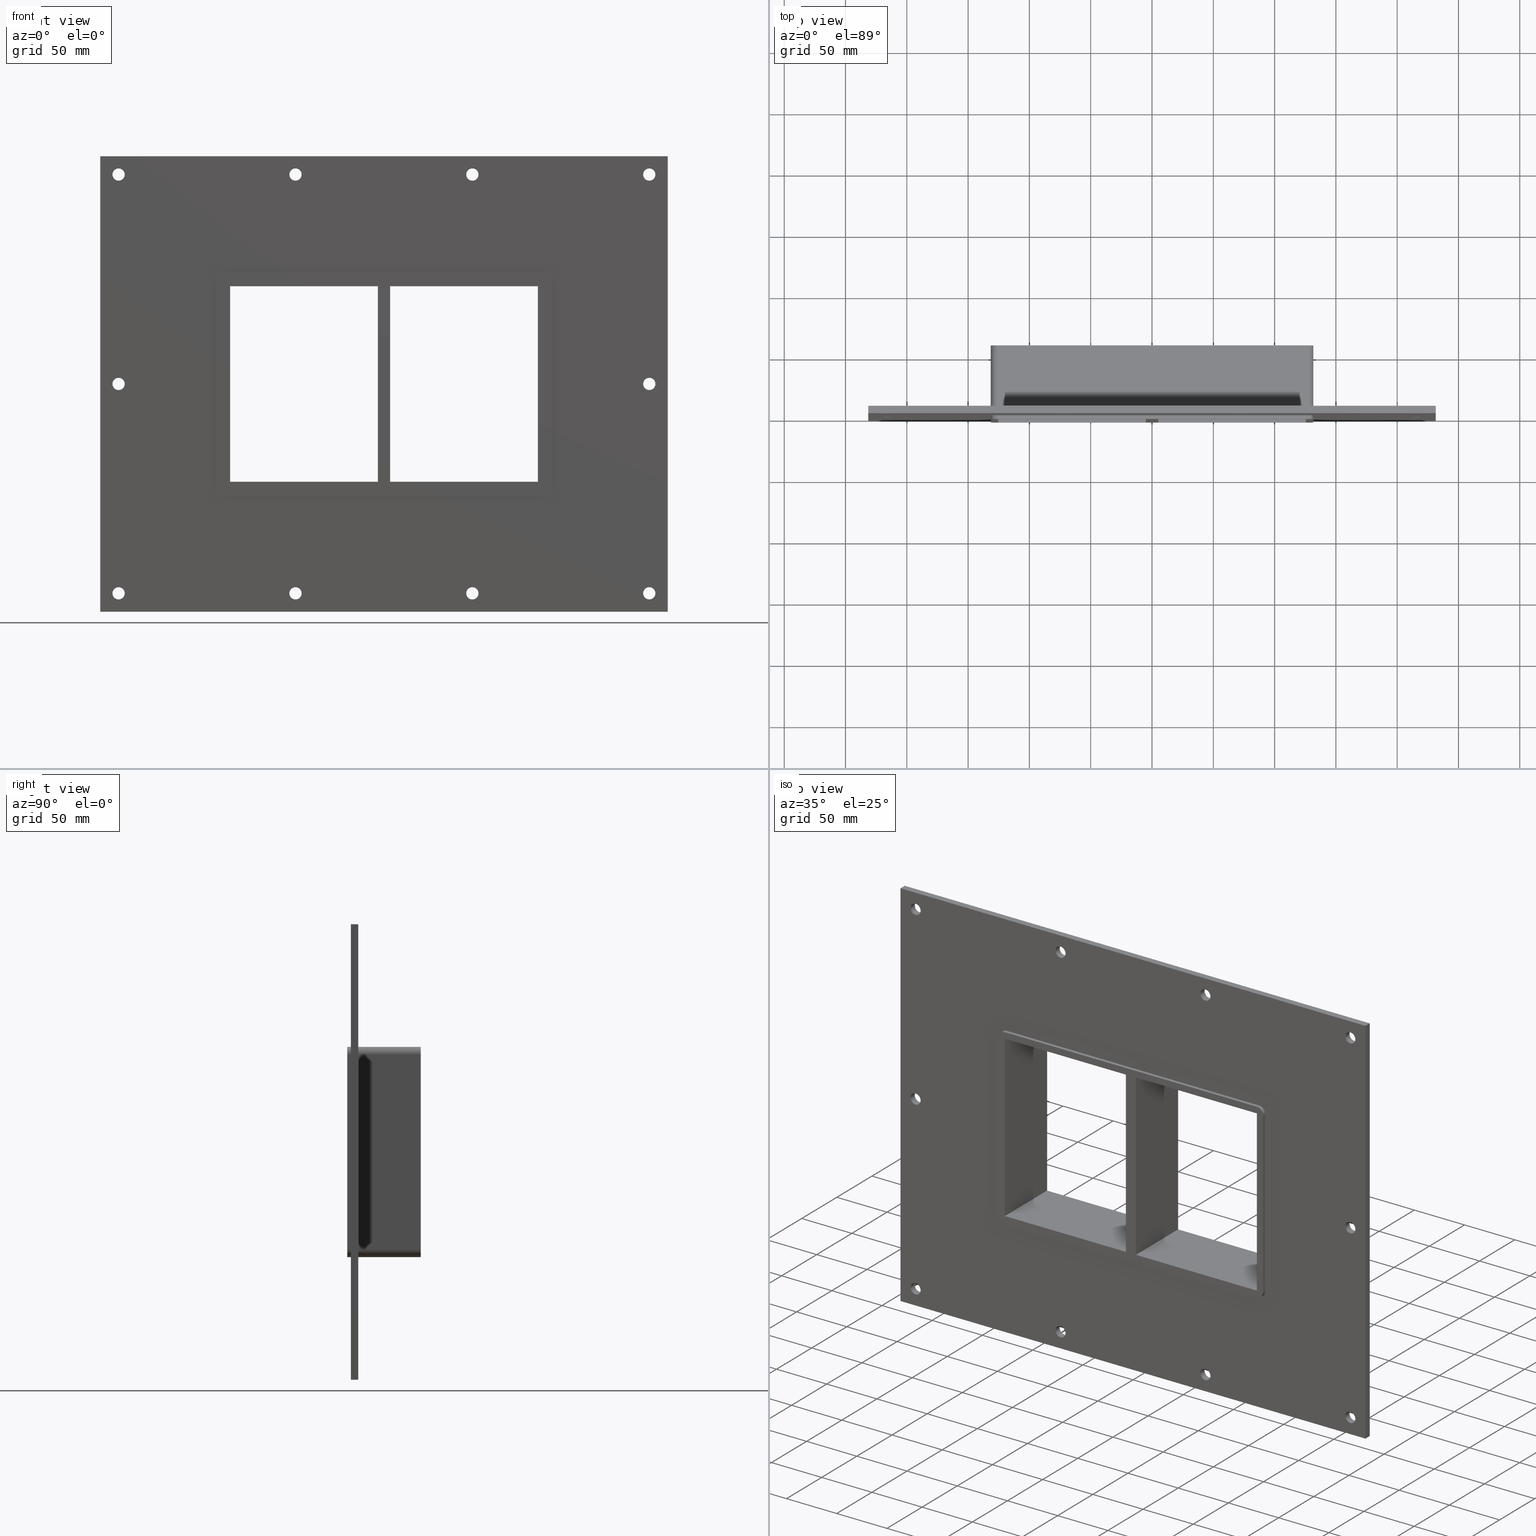
[diagram: canonical four-view strip — front | top / right | iso, engineering-drawing reading convention]
A machine part, canonical four-view strip (front | top / right | iso — engineering-drawing reading convention). The complete STEP part file that produces these views, byte-faithful:
ISO-10303-21;
HEADER;
/****************************************************************
 * Generated by software with PDElib inside                    *
 * PDElib Version v51a, created Wed 11/30/2011                  *
 * ITI Transcendata (http://www.transcendata.com/)              *
 ****************************************************************/
FILE_DESCRIPTION((''),'2;1');
FILE_NAME('C:\\Users\\se-milkar\\Desktop\\RTD Generator\\CreatedFiles\\STEP\\GHFL1004X2.stp','2014-03-10T22:15:23',(''),(''),'Autodesk Inventor 2013','Autodesk Inventor 2013','');
FILE_SCHEMA(('AUTOMOTIVE_DESIGN { 1 0 10303 214 1 1 1 1 }'));
ENDSEC;
DATA;
#5=APPLICATION_CONTEXT('automotive design');
#6=APPLICATION_PROTOCOL_DEFINITION('International Standard','automotive_design',2001,#5);
#7=PRODUCT_CONTEXT('',#5,'mechanical');
#8=PRODUCT('GH FL100','GH FL100',$,(#7));
#9=PRODUCT_RELATED_PRODUCT_CATEGORY('part',$,(#8));
#10=PRODUCT_DEFINITION_FORMATION('',$,#8);
#11=PRODUCT_DEFINITION_CONTEXT('part definition',#5,'design');
#12=PRODUCT_DEFINITION('',$,#10,#11);
#18=(NAMED_UNIT(*)PLANE_ANGLE_UNIT()SI_UNIT($,.RADIAN.));
#19=DIMENSIONAL_EXPONENTS(0.0,0.0,0.0,0.0,0.0,0.0,0.0);
#20=PLANE_ANGLE_MEASURE_WITH_UNIT(PLANE_ANGLE_MEASURE(0.0174532925),#18);
#24=(CONVERSION_BASED_UNIT('DEGREE',#20)NAMED_UNIT(#19)PLANE_ANGLE_UNIT());
#28=(NAMED_UNIT(*)SI_UNIT($,.STERADIAN.)SOLID_ANGLE_UNIT());
#32=(LENGTH_UNIT()NAMED_UNIT(*)SI_UNIT(.MILLI.,.METRE.));
#34=UNCERTAINTY_MEASURE_WITH_UNIT(LENGTH_MEASURE(0.01),#32,'DISTANCE_ACCURACY_VALUE','');
#36=(GEOMETRIC_REPRESENTATION_CONTEXT(3)GLOBAL_UNCERTAINTY_ASSIGNED_CONTEXT((#34))GLOBAL_UNIT_ASSIGNED_CONTEXT((#24,#28,#32))REPRESENTATION_CONTEXT('None','None'));
#37=AXIS2_PLACEMENT_3D('',#38,#39,#40);
#38=CARTESIAN_POINT('',(0.0,0.0,0.0));
#39=DIRECTION('',(0.0,0.0,1.0));
#40=DIRECTION('',(1.0,0.0,0.0));
#41=SHAPE_REPRESENTATION('',(#37),#36);
#42=PRODUCT_DEFINITION_SHAPE('','',#12);
#43=SHAPE_DEFINITION_REPRESENTATION(#42,#41);
#49=(NAMED_UNIT(*)PLANE_ANGLE_UNIT()SI_UNIT($,.RADIAN.));
#50=DIMENSIONAL_EXPONENTS(0.0,0.0,0.0,0.0,0.0,0.0,0.0);
#51=PLANE_ANGLE_MEASURE_WITH_UNIT(PLANE_ANGLE_MEASURE(0.0174532925),#49);
#55=(CONVERSION_BASED_UNIT('DEGREE',#51)NAMED_UNIT(#50)PLANE_ANGLE_UNIT());
#59=(NAMED_UNIT(*)SI_UNIT($,.STERADIAN.)SOLID_ANGLE_UNIT());
#63=(LENGTH_UNIT()NAMED_UNIT(*)SI_UNIT(.MILLI.,.METRE.));
#65=UNCERTAINTY_MEASURE_WITH_UNIT(LENGTH_MEASURE(0.000001),#63,'DISTANCE_ACCURACY_VALUE','');
#67=(GEOMETRIC_REPRESENTATION_CONTEXT(3)GLOBAL_UNCERTAINTY_ASSIGNED_CONTEXT((#65))GLOBAL_UNIT_ASSIGNED_CONTEXT((#55,#59,#63))REPRESENTATION_CONTEXT('','3D'));
#68=CARTESIAN_POINT('',(-216.50000000000011,596.6416428644585,-170.75));
#69=DIRECTION('',(0.0,-1.0,0.0));
#70=DIRECTION('',(1.0,0.0,0.0));
#71=AXIS2_PLACEMENT_3D('',#68,#69,#70);
#72=CYLINDRICAL_SURFACE('',#71,5.0);
#73=CARTESIAN_POINT('',(-221.50000000000011,6.000000000000014,-170.75));
#74=VERTEX_POINT('',#73);
#75=CARTESIAN_POINT('',(-216.50000000000011,6.000000000000014,-170.75));
#76=DIRECTION('',(0.0,-1.0,0.0));
#77=DIRECTION('',(1.0,0.0,0.0));
#78=AXIS2_PLACEMENT_3D('',#75,#76,#77);
#79=CIRCLE('',#78,5.0);
#80=EDGE_CURVE('',#74,#74,#79,.T.);
#81=ORIENTED_EDGE('',*,*,#80,.F.);
#82=EDGE_LOOP('',(#81));
#83=FACE_OUTER_BOUND('',#82,.T.);
#84=CARTESIAN_POINT('',(-211.50000000000011,0.0,-170.75));
#85=VERTEX_POINT('',#84);
#86=CARTESIAN_POINT('',(-216.50000000000011,0.0,-170.75));
#87=DIRECTION('',(0.0,1.0,0.0));
#88=DIRECTION('',(1.0,0.0,0.0));
#89=AXIS2_PLACEMENT_3D('',#86,#87,#88);
#90=CIRCLE('',#89,5.0);
#91=EDGE_CURVE('',#85,#85,#90,.T.);
#92=ORIENTED_EDGE('',*,*,#91,.F.);
#93=EDGE_LOOP('',(#92));
#94=FACE_BOUND('',#93,.T.);
#95=ADVANCED_FACE('',(#83,#94),#72,.F.);
#96=CARTESIAN_POINT('',(216.39999999999992,596.6416428644585,0.050000000000026));
#97=DIRECTION('',(0.0,-1.0,0.0));
#98=DIRECTION('',(1.0,0.0,0.0));
#99=AXIS2_PLACEMENT_3D('',#96,#97,#98);
#100=CYLINDRICAL_SURFACE('',#99,5.0);
#101=CARTESIAN_POINT('',(211.39999999999992,6.000000000000014,0.050000000000026));
#102=VERTEX_POINT('',#101);
#103=CARTESIAN_POINT('',(216.39999999999992,6.000000000000014,0.050000000000026));
#104=DIRECTION('',(0.0,-1.0,0.0));
#105=DIRECTION('',(1.0,0.0,0.0));
#106=AXIS2_PLACEMENT_3D('',#103,#104,#105);
#107=CIRCLE('',#106,5.0);
#108=EDGE_CURVE('',#102,#102,#107,.T.);
#109=ORIENTED_EDGE('',*,*,#108,.F.);
#110=EDGE_LOOP('',(#109));
#111=FACE_OUTER_BOUND('',#110,.T.);
#112=CARTESIAN_POINT('',(221.39999999999992,0.0,0.050000000000026));
#113=VERTEX_POINT('',#112);
#114=CARTESIAN_POINT('',(216.39999999999992,0.0,0.050000000000026));
#115=DIRECTION('',(0.0,1.0,0.0));
#116=DIRECTION('',(1.0,0.0,0.0));
#117=AXIS2_PLACEMENT_3D('',#114,#115,#116);
#118=CIRCLE('',#117,5.0);
#119=EDGE_CURVE('',#113,#113,#118,.T.);
#120=ORIENTED_EDGE('',*,*,#119,.F.);
#121=EDGE_LOOP('',(#120));
#122=FACE_BOUND('',#121,.T.);
#123=ADVANCED_FACE('',(#111,#122),#100,.F.);
#124=CARTESIAN_POINT('',(-216.50000000000011,596.6416428644585,0.050000000000026));
#125=DIRECTION('',(0.0,-1.0,0.0));
#126=DIRECTION('',(1.0,0.0,0.0));
#127=AXIS2_PLACEMENT_3D('',#124,#125,#126);
#128=CYLINDRICAL_SURFACE('',#127,5.0);
#129=CARTESIAN_POINT('',(-221.50000000000011,6.000000000000014,0.050000000000026));
#130=VERTEX_POINT('',#129);
#131=CARTESIAN_POINT('',(-216.50000000000011,6.000000000000014,0.050000000000026));
#132=DIRECTION('',(0.0,-1.0,0.0));
#133=DIRECTION('',(1.0,0.0,0.0));
#134=AXIS2_PLACEMENT_3D('',#131,#132,#133);
#135=CIRCLE('',#134,5.0);
#136=EDGE_CURVE('',#130,#130,#135,.T.);
#137=ORIENTED_EDGE('',*,*,#136,.F.);
#138=EDGE_LOOP('',(#137));
#139=FACE_OUTER_BOUND('',#138,.T.);
#140=CARTESIAN_POINT('',(-211.50000000000011,0.0,0.050000000000026));
#141=VERTEX_POINT('',#140);
#142=CARTESIAN_POINT('',(-216.50000000000011,0.0,0.050000000000026));
#143=DIRECTION('',(0.0,1.0,0.0));
#144=DIRECTION('',(1.0,0.0,0.0));
#145=AXIS2_PLACEMENT_3D('',#142,#143,#144);
#146=CIRCLE('',#145,5.0);
#147=EDGE_CURVE('',#141,#141,#146,.T.);
#148=ORIENTED_EDGE('',*,*,#147,.F.);
#149=EDGE_LOOP('',(#148));
#150=FACE_BOUND('',#149,.T.);
#151=ADVANCED_FACE('',(#139,#150),#128,.F.);
#152=CARTESIAN_POINT('',(-72.200000000000102,596.6416428644585,170.85000000000005));
#153=DIRECTION('',(0.0,-1.0,0.0));
#154=DIRECTION('',(1.0,0.0,0.0));
#155=AXIS2_PLACEMENT_3D('',#152,#153,#154);
#156=CYLINDRICAL_SURFACE('',#155,5.0);
#157=CARTESIAN_POINT('',(-77.200000000000102,6.000000000000014,170.85000000000005));
#158=VERTEX_POINT('',#157);
#159=CARTESIAN_POINT('',(-72.200000000000102,6.000000000000014,170.85000000000005));
#160=DIRECTION('',(0.0,-1.0,0.0));
#161=DIRECTION('',(1.0,0.0,0.0));
#162=AXIS2_PLACEMENT_3D('',#159,#160,#161);
#163=CIRCLE('',#162,5.0);
#164=EDGE_CURVE('',#158,#158,#163,.T.);
#165=ORIENTED_EDGE('',*,*,#164,.F.);
#166=EDGE_LOOP('',(#165));
#167=FACE_OUTER_BOUND('',#166,.T.);
#168=CARTESIAN_POINT('',(-67.200000000000102,0.0,170.85000000000005));
#169=VERTEX_POINT('',#168);
#170=CARTESIAN_POINT('',(-72.200000000000102,0.0,170.85000000000005));
#171=DIRECTION('',(0.0,1.0,0.0));
#172=DIRECTION('',(1.0,0.0,0.0));
#173=AXIS2_PLACEMENT_3D('',#170,#171,#172);
#174=CIRCLE('',#173,5.0);
#175=EDGE_CURVE('',#169,#169,#174,.T.);
#176=ORIENTED_EDGE('',*,*,#175,.F.);
#177=EDGE_LOOP('',(#176));
#178=FACE_BOUND('',#177,.T.);
#179=ADVANCED_FACE('',(#167,#178),#156,.F.);
#180=CARTESIAN_POINT('',(-72.200000000000102,596.6416428644585,-170.75));
#181=DIRECTION('',(0.0,-1.0,0.0));
#182=DIRECTION('',(1.0,0.0,0.0));
#183=AXIS2_PLACEMENT_3D('',#180,#181,#182);
#184=CYLINDRICAL_SURFACE('',#183,5.0);
#185=CARTESIAN_POINT('',(-77.200000000000102,6.000000000000014,-170.75));
#186=VERTEX_POINT('',#185);
#187=CARTESIAN_POINT('',(-72.200000000000102,6.000000000000014,-170.75));
#188=DIRECTION('',(0.0,-1.0,0.0));
#189=DIRECTION('',(1.0,0.0,0.0));
#190=AXIS2_PLACEMENT_3D('',#187,#188,#189);
#191=CIRCLE('',#190,5.0);
#192=EDGE_CURVE('',#186,#186,#191,.T.);
#193=ORIENTED_EDGE('',*,*,#192,.F.);
#194=EDGE_LOOP('',(#193));
#195=FACE_OUTER_BOUND('',#194,.T.);
#196=CARTESIAN_POINT('',(-67.200000000000102,0.0,-170.75));
#197=VERTEX_POINT('',#196);
#198=CARTESIAN_POINT('',(-72.200000000000102,0.0,-170.75));
#199=DIRECTION('',(0.0,1.0,0.0));
#200=DIRECTION('',(1.0,0.0,0.0));
#201=AXIS2_PLACEMENT_3D('',#198,#199,#200);
#202=CIRCLE('',#201,5.0);
#203=EDGE_CURVE('',#197,#197,#202,.T.);
#204=ORIENTED_EDGE('',*,*,#203,.F.);
#205=EDGE_LOOP('',(#204));
#206=FACE_BOUND('',#205,.T.);
#207=ADVANCED_FACE('',(#195,#206),#184,.F.);
#208=CARTESIAN_POINT('',(72.099999999999923,596.6416428644585,170.85000000000005));
#209=DIRECTION('',(0.0,-1.0,0.0));
#210=DIRECTION('',(1.0,0.0,0.0));
#211=AXIS2_PLACEMENT_3D('',#208,#209,#210);
#212=CYLINDRICAL_SURFACE('',#211,5.0);
#213=CARTESIAN_POINT('',(67.099999999999923,6.000000000000014,170.85000000000005));
#214=VERTEX_POINT('',#213);
#215=CARTESIAN_POINT('',(72.099999999999923,6.000000000000014,170.85000000000005));
#216=DIRECTION('',(0.0,-1.0,0.0));
#217=DIRECTION('',(1.0,0.0,0.0));
#218=AXIS2_PLACEMENT_3D('',#215,#216,#217);
#219=CIRCLE('',#218,5.0);
#220=EDGE_CURVE('',#214,#214,#219,.T.);
#221=ORIENTED_EDGE('',*,*,#220,.F.);
#222=EDGE_LOOP('',(#221));
#223=FACE_OUTER_BOUND('',#222,.T.);
#224=CARTESIAN_POINT('',(77.099999999999923,0.0,170.85000000000005));
#225=VERTEX_POINT('',#224);
#226=CARTESIAN_POINT('',(72.099999999999923,0.0,170.85000000000005));
#227=DIRECTION('',(0.0,1.0,0.0));
#228=DIRECTION('',(1.0,0.0,0.0));
#229=AXIS2_PLACEMENT_3D('',#226,#227,#228);
#230=CIRCLE('',#229,5.0);
#231=EDGE_CURVE('',#225,#225,#230,.T.);
#232=ORIENTED_EDGE('',*,*,#231,.F.);
#233=EDGE_LOOP('',(#232));
#234=FACE_BOUND('',#233,.T.);
#235=ADVANCED_FACE('',(#223,#234),#212,.F.);
#236=CARTESIAN_POINT('',(72.099999999999923,596.6416428644585,-170.75));
#237=DIRECTION('',(0.0,-1.0,0.0));
#238=DIRECTION('',(1.0,0.0,0.0));
#239=AXIS2_PLACEMENT_3D('',#236,#237,#238);
#240=CYLINDRICAL_SURFACE('',#239,5.0);
#241=CARTESIAN_POINT('',(67.099999999999923,6.000000000000014,-170.75));
#242=VERTEX_POINT('',#241);
#243=CARTESIAN_POINT('',(72.099999999999923,6.000000000000014,-170.75));
#244=DIRECTION('',(0.0,-1.0,0.0));
#245=DIRECTION('',(1.0,0.0,0.0));
#246=AXIS2_PLACEMENT_3D('',#243,#244,#245);
#247=CIRCLE('',#246,5.0);
#248=EDGE_CURVE('',#242,#242,#247,.T.);
#249=ORIENTED_EDGE('',*,*,#248,.F.);
#250=EDGE_LOOP('',(#249));
#251=FACE_OUTER_BOUND('',#250,.T.);
#252=CARTESIAN_POINT('',(77.099999999999923,0.0,-170.75));
#253=VERTEX_POINT('',#252);
#254=CARTESIAN_POINT('',(72.099999999999923,0.0,-170.75));
#255=DIRECTION('',(0.0,1.0,0.0));
#256=DIRECTION('',(1.0,0.0,0.0));
#257=AXIS2_PLACEMENT_3D('',#254,#255,#256);
#258=CIRCLE('',#257,5.0);
#259=EDGE_CURVE('',#253,#253,#258,.T.);
#260=ORIENTED_EDGE('',*,*,#259,.F.);
#261=EDGE_LOOP('',(#260));
#262=FACE_BOUND('',#261,.T.);
#263=ADVANCED_FACE('',(#251,#262),#240,.F.);
#264=CARTESIAN_POINT('',(216.39999999999992,596.6416428644585,-170.75));
#265=DIRECTION('',(0.0,-1.0,0.0));
#266=DIRECTION('',(1.0,0.0,0.0));
#267=AXIS2_PLACEMENT_3D('',#264,#265,#266);
#268=CYLINDRICAL_SURFACE('',#267,5.0);
#269=CARTESIAN_POINT('',(211.39999999999992,6.000000000000014,-170.75));
#270=VERTEX_POINT('',#269);
#271=CARTESIAN_POINT('',(216.39999999999992,6.000000000000014,-170.75));
#272=DIRECTION('',(0.0,-1.0,0.0));
#273=DIRECTION('',(1.0,0.0,0.0));
#274=AXIS2_PLACEMENT_3D('',#271,#272,#273);
#275=CIRCLE('',#274,5.0);
#276=EDGE_CURVE('',#270,#270,#275,.T.);
#277=ORIENTED_EDGE('',*,*,#276,.F.);
#278=EDGE_LOOP('',(#277));
#279=FACE_OUTER_BOUND('',#278,.T.);
#280=CARTESIAN_POINT('',(221.39999999999992,0.0,-170.75));
#281=VERTEX_POINT('',#280);
#282=CARTESIAN_POINT('',(216.39999999999992,0.0,-170.75));
#283=DIRECTION('',(0.0,1.0,0.0));
#284=DIRECTION('',(1.0,0.0,0.0));
#285=AXIS2_PLACEMENT_3D('',#282,#283,#284);
#286=CIRCLE('',#285,5.0);
#287=EDGE_CURVE('',#281,#281,#286,.T.);
#288=ORIENTED_EDGE('',*,*,#287,.F.);
#289=EDGE_LOOP('',(#288));
#290=FACE_BOUND('',#289,.T.);
#291=ADVANCED_FACE('',(#279,#290),#268,.F.);
#292=CARTESIAN_POINT('',(-216.50000000000011,596.6416428644585,170.85000000000005));
#293=DIRECTION('',(0.0,-1.0,0.0));
#294=DIRECTION('',(1.0,0.0,0.0));
#295=AXIS2_PLACEMENT_3D('',#292,#293,#294);
#296=CYLINDRICAL_SURFACE('',#295,5.0);
#297=CARTESIAN_POINT('',(-221.50000000000011,6.000000000000014,170.85000000000005));
#298=VERTEX_POINT('',#297);
#299=CARTESIAN_POINT('',(-216.50000000000011,6.000000000000014,170.85000000000005));
#300=DIRECTION('',(0.0,-1.0,0.0));
#301=DIRECTION('',(1.0,0.0,0.0));
#302=AXIS2_PLACEMENT_3D('',#299,#300,#301);
#303=CIRCLE('',#302,5.0);
#304=EDGE_CURVE('',#298,#298,#303,.T.);
#305=ORIENTED_EDGE('',*,*,#304,.F.);
#306=EDGE_LOOP('',(#305));
#307=FACE_OUTER_BOUND('',#306,.T.);
#308=CARTESIAN_POINT('',(-211.50000000000011,0.0,170.85000000000005));
#309=VERTEX_POINT('',#308);
#310=CARTESIAN_POINT('',(-216.50000000000011,0.0,170.85000000000005));
#311=DIRECTION('',(0.0,1.0,0.0));
#312=DIRECTION('',(1.0,0.0,0.0));
#313=AXIS2_PLACEMENT_3D('',#310,#311,#312);
#314=CIRCLE('',#313,5.0);
#315=EDGE_CURVE('',#309,#309,#314,.T.);
#316=ORIENTED_EDGE('',*,*,#315,.F.);
#317=EDGE_LOOP('',(#316));
#318=FACE_BOUND('',#317,.T.);
#319=ADVANCED_FACE('',(#307,#318),#296,.F.);
#320=CARTESIAN_POINT('',(216.39999999999992,596.6416428644585,170.85000000000005));
#321=DIRECTION('',(0.0,-1.0,0.0));
#322=DIRECTION('',(1.0,0.0,0.0));
#323=AXIS2_PLACEMENT_3D('',#320,#321,#322);
#324=CYLINDRICAL_SURFACE('',#323,5.0);
#325=CARTESIAN_POINT('',(211.39999999999992,6.000000000000014,170.85000000000005));
#326=VERTEX_POINT('',#325);
#327=CARTESIAN_POINT('',(216.39999999999992,6.000000000000014,170.85000000000005));
#328=DIRECTION('',(0.0,-1.0,0.0));
#329=DIRECTION('',(1.0,0.0,0.0));
#330=AXIS2_PLACEMENT_3D('',#327,#328,#329);
#331=CIRCLE('',#330,5.0);
#332=EDGE_CURVE('',#326,#326,#331,.T.);
#333=ORIENTED_EDGE('',*,*,#332,.F.);
#334=EDGE_LOOP('',(#333));
#335=FACE_OUTER_BOUND('',#334,.T.);
#336=CARTESIAN_POINT('',(221.39999999999992,0.0,170.85000000000005));
#337=VERTEX_POINT('',#336);
#338=CARTESIAN_POINT('',(216.39999999999992,0.0,170.85000000000005));
#339=DIRECTION('',(0.0,1.0,0.0));
#340=DIRECTION('',(1.0,0.0,0.0));
#341=AXIS2_PLACEMENT_3D('',#338,#339,#340);
#342=CIRCLE('',#341,5.0);
#343=EDGE_CURVE('',#337,#337,#342,.T.);
#344=ORIENTED_EDGE('',*,*,#343,.F.);
#345=EDGE_LOOP('',(#344));
#346=FACE_BOUND('',#345,.T.);
#347=ADVANCED_FACE('',(#335,#346),#324,.F.);
#348=CARTESIAN_POINT('',(-5.000000000001332,-3.0,-79.750000000000014));
#349=DIRECTION('',(-1.0,0.0,0.0));
#350=DIRECTION('',(0.0,0.0,1.0));
#351=AXIS2_PLACEMENT_3D('',#348,#349,#350);
#352=PLANE('',#351);
#353=CARTESIAN_POINT('',(-5.000000000001332,-3.0,-79.750000000000014));
#354=VERTEX_POINT('',#353);
#355=CARTESIAN_POINT('',(-5.00000000000135,-3.0,79.750000000000014));
#356=VERTEX_POINT('',#355);
#357=CARTESIAN_POINT('',(-5.000000000001332,-3.0,-79.750000000000014));
#358=DIRECTION('',(0.0,0.0,1.0));
#359=VECTOR('',#358,159.50000000000003);
#360=LINE('',#357,#359);
#361=EDGE_CURVE('',#354,#356,#360,.T.);
#362=ORIENTED_EDGE('',*,*,#361,.T.);
#363=CARTESIAN_POINT('',(-5.00000000000135,57.0,79.750000000000014));
#364=VERTEX_POINT('',#363);
#365=CARTESIAN_POINT('',(-5.00000000000135,57.000000000000007,79.750000000000014));
#366=DIRECTION('',(0.0,-1.0,0.0));
#367=VECTOR('',#366,60.000000000000007);
#368=LINE('',#365,#367);
#369=EDGE_CURVE('',#364,#356,#368,.T.);
#370=ORIENTED_EDGE('',*,*,#369,.F.);
#371=CARTESIAN_POINT('',(-5.000000000001332,57.0,-79.750000000000014));
#372=VERTEX_POINT('',#371);
#373=CARTESIAN_POINT('',(-5.000000000001332,57.0,-79.750000000000014));
#374=DIRECTION('',(0.0,0.0,1.0));
#375=VECTOR('',#374,159.50000000000003);
#376=LINE('',#373,#375);
#377=EDGE_CURVE('',#372,#364,#376,.T.);
#378=ORIENTED_EDGE('',*,*,#377,.F.);
#379=CARTESIAN_POINT('',(-5.000000000001332,-3.0,-79.750000000000014));
#380=DIRECTION('',(0.0,1.0,0.0));
#381=VECTOR('',#380,60.000000000000007);
#382=LINE('',#379,#381);
#383=EDGE_CURVE('',#354,#372,#382,.T.);
#384=ORIENTED_EDGE('',*,*,#383,.F.);
#385=EDGE_LOOP('',(#362,#370,#378,#384));
#386=FACE_OUTER_BOUND('',#385,.T.);
#387=ADVANCED_FACE('',(#386),#352,.T.);
#388=CARTESIAN_POINT('',(5.0,-3.0,79.750000000000014));
#389=DIRECTION('',(1.0,0.0,0.0));
#390=DIRECTION('',(0.0,0.0,-1.0));
#391=AXIS2_PLACEMENT_3D('',#388,#389,#390);
#392=PLANE('',#391);
#393=CARTESIAN_POINT('',(5.0,-3.0,79.750000000000014));
#394=VERTEX_POINT('',#393);
#395=CARTESIAN_POINT('',(5.0,-3.0,-79.74999999998424));
#396=VERTEX_POINT('',#395);
#397=CARTESIAN_POINT('',(5.0,-3.0,79.750000000000014));
#398=DIRECTION('',(0.0,0.0,-1.0));
#399=VECTOR('',#398,159.49999999998425);
#400=LINE('',#397,#399);
#401=EDGE_CURVE('',#394,#396,#400,.T.);
#402=ORIENTED_EDGE('',*,*,#401,.T.);
#403=CARTESIAN_POINT('',(5.0,57.0,-79.74999999998424));
#404=VERTEX_POINT('',#403);
#405=CARTESIAN_POINT('',(5.0,57.000000000000007,-79.750000000000014));
#406=DIRECTION('',(0.0,-1.0,0.0));
#407=VECTOR('',#406,60.000000000000007);
#408=LINE('',#405,#407);
#409=EDGE_CURVE('',#404,#396,#408,.T.);
#410=ORIENTED_EDGE('',*,*,#409,.F.);
#411=CARTESIAN_POINT('',(5.0,57.0,79.750000000000014));
#412=VERTEX_POINT('',#411);
#413=CARTESIAN_POINT('',(5.0,57.0,79.750000000000014));
#414=DIRECTION('',(0.0,0.0,-1.0));
#415=VECTOR('',#414,159.49999999998425);
#416=LINE('',#413,#415);
#417=EDGE_CURVE('',#412,#404,#416,.T.);
#418=ORIENTED_EDGE('',*,*,#417,.F.);
#419=CARTESIAN_POINT('',(5.0,-3.0,79.750000000000014));
#420=DIRECTION('',(0.0,1.0,0.0));
#421=VECTOR('',#420,60.000000000000007);
#422=LINE('',#419,#421);
#423=EDGE_CURVE('',#394,#412,#422,.T.);
#424=ORIENTED_EDGE('',*,*,#423,.F.);
#425=EDGE_LOOP('',(#402,#410,#418,#424));
#426=FACE_OUTER_BOUND('',#425,.T.);
#427=ADVANCED_FACE('',(#426),#392,.T.);
#428=CARTESIAN_POINT('',(125.5,0.0,-79.750000000000014));
#429=DIRECTION('',(0.0,0.0,-1.0));
#430=DIRECTION('',(-1.0,0.0,0.0));
#431=AXIS2_PLACEMENT_3D('',#428,#429,#430);
#432=PLANE('',#431);
#433=ORIENTED_EDGE('',*,*,#383,.T.);
#434=CARTESIAN_POINT('',(-125.5,57.0,-79.750000000000014));
#435=VERTEX_POINT('',#434);
#436=CARTESIAN_POINT('',(-125.50000000000001,57.0,-79.750000000000014));
#437=DIRECTION('',(1.0,0.0,0.0));
#438=VECTOR('',#437,120.49999999999868);
#439=LINE('',#436,#438);
#440=EDGE_CURVE('',#435,#372,#439,.T.);
#441=ORIENTED_EDGE('',*,*,#440,.F.);
#442=CARTESIAN_POINT('',(-125.5,-3.0,-79.750000000000014));
#443=VERTEX_POINT('',#442);
#444=CARTESIAN_POINT('',(-125.49999999999999,-3.0,-79.750000000000014));
#445=DIRECTION('',(0.0,1.0,0.0));
#446=VECTOR('',#445,60.0);
#447=LINE('',#444,#446);
#448=EDGE_CURVE('',#443,#435,#447,.T.);
#449=ORIENTED_EDGE('',*,*,#448,.F.);
#450=CARTESIAN_POINT('',(-5.000000000001336,-3.0,-79.750000000000014));
#451=DIRECTION('',(-1.0,0.0,0.0));
#452=VECTOR('',#451,120.49999999999868);
#453=LINE('',#450,#452);
#454=EDGE_CURVE('',#354,#443,#453,.T.);
#455=ORIENTED_EDGE('',*,*,#454,.F.);
#456=EDGE_LOOP('',(#433,#441,#449,#455));
#457=FACE_OUTER_BOUND('',#456,.T.);
#458=ADVANCED_FACE('',(#457),#432,.F.);
#459=CARTESIAN_POINT('',(125.5,0.0,-79.750000000000014));
#460=DIRECTION('',(0.0,0.0,-1.0));
#461=DIRECTION('',(-1.0,0.0,0.0));
#462=AXIS2_PLACEMENT_3D('',#459,#460,#461);
#463=PLANE('',#462);
#464=ORIENTED_EDGE('',*,*,#409,.T.);
#465=CARTESIAN_POINT('',(125.5,-3.0,-79.750000000000014));
#466=VERTEX_POINT('',#465);
#467=CARTESIAN_POINT('',(125.5,-3.0,-79.750000000000014));
#468=DIRECTION('',(-1.0,0.0,0.0));
#469=VECTOR('',#468,120.5);
#470=LINE('',#467,#469);
#471=EDGE_CURVE('',#466,#396,#470,.T.);
#472=ORIENTED_EDGE('',*,*,#471,.F.);
#473=CARTESIAN_POINT('',(125.5,57.0,-79.750000000000014));
#474=VERTEX_POINT('',#473);
#475=CARTESIAN_POINT('',(125.5,56.999999999999993,-79.750000000000014));
#476=DIRECTION('',(0.0,-1.0,0.0));
#477=VECTOR('',#476,59.999999999999993);
#478=LINE('',#475,#477);
#479=EDGE_CURVE('',#474,#466,#478,.T.);
#480=ORIENTED_EDGE('',*,*,#479,.F.);
#481=CARTESIAN_POINT('',(5.0,57.0,-79.750000000000014));
#482=DIRECTION('',(1.0,0.0,0.0));
#483=VECTOR('',#482,120.5);
#484=LINE('',#481,#483);
#485=EDGE_CURVE('',#404,#474,#484,.T.);
#486=ORIENTED_EDGE('',*,*,#485,.F.);
#487=EDGE_LOOP('',(#464,#472,#480,#486));
#488=FACE_OUTER_BOUND('',#487,.T.);
#489=ADVANCED_FACE('',(#488),#463,.F.);
#490=CARTESIAN_POINT('',(-125.49999999999999,0.0,79.750000000000014));
#491=DIRECTION('',(0.0,0.0,1.0));
#492=DIRECTION('',(1.0,0.0,0.0));
#493=AXIS2_PLACEMENT_3D('',#490,#491,#492);
#494=PLANE('',#493);
#495=ORIENTED_EDGE('',*,*,#423,.T.);
#496=CARTESIAN_POINT('',(125.5,57.0,79.750000000000014));
#497=VERTEX_POINT('',#496);
#498=CARTESIAN_POINT('',(125.50000000000001,57.0,79.750000000000014));
#499=DIRECTION('',(-1.0,0.0,0.0));
#500=VECTOR('',#499,120.50000000000001);
#501=LINE('',#498,#500);
#502=EDGE_CURVE('',#497,#412,#501,.T.);
#503=ORIENTED_EDGE('',*,*,#502,.F.);
#504=CARTESIAN_POINT('',(125.5,-3.0,79.750000000000014));
#505=VERTEX_POINT('',#504);
#506=CARTESIAN_POINT('',(125.5,-3.0,79.750000000000014));
#507=DIRECTION('',(0.0,1.0,0.0));
#508=VECTOR('',#507,60.0);
#509=LINE('',#506,#508);
#510=EDGE_CURVE('',#505,#497,#509,.T.);
#511=ORIENTED_EDGE('',*,*,#510,.F.);
#512=CARTESIAN_POINT('',(5.0,-3.0,79.750000000000014));
#513=DIRECTION('',(1.0,0.0,0.0));
#514=VECTOR('',#513,120.50000000000001);
#515=LINE('',#512,#514);
#516=EDGE_CURVE('',#394,#505,#515,.T.);
#517=ORIENTED_EDGE('',*,*,#516,.F.);
#518=EDGE_LOOP('',(#495,#503,#511,#517));
#519=FACE_OUTER_BOUND('',#518,.T.);
#520=ADVANCED_FACE('',(#519),#494,.F.);
#521=CARTESIAN_POINT('',(-125.49999999999999,0.0,79.750000000000014));
#522=DIRECTION('',(0.0,0.0,1.0));
#523=DIRECTION('',(1.0,0.0,0.0));
#524=AXIS2_PLACEMENT_3D('',#521,#522,#523);
#525=PLANE('',#524);
#526=ORIENTED_EDGE('',*,*,#369,.T.);
#527=CARTESIAN_POINT('',(-125.5,-3.0,79.750000000000014));
#528=VERTEX_POINT('',#527);
#529=CARTESIAN_POINT('',(-125.5,-3.0,79.750000000000014));
#530=DIRECTION('',(1.0,0.0,0.0));
#531=VECTOR('',#530,120.49999999999865);
#532=LINE('',#529,#531);
#533=EDGE_CURVE('',#528,#356,#532,.T.);
#534=ORIENTED_EDGE('',*,*,#533,.F.);
#535=CARTESIAN_POINT('',(-125.5,57.0,79.750000000000014));
#536=VERTEX_POINT('',#535);
#537=CARTESIAN_POINT('',(-125.49999999999999,-3.0,79.750000000000014));
#538=DIRECTION('',(0.0,1.0,0.0));
#539=VECTOR('',#538,60.0);
#540=LINE('',#537,#539);
#541=EDGE_CURVE('',#528,#536,#540,.T.);
#542=ORIENTED_EDGE('',*,*,#541,.T.);
#543=CARTESIAN_POINT('',(-5.00000000000135,57.0,79.750000000000014));
#544=DIRECTION('',(-1.0,0.0,0.0));
#545=VECTOR('',#544,120.49999999999865);
#546=LINE('',#543,#545);
#547=EDGE_CURVE('',#364,#536,#546,.T.);
#548=ORIENTED_EDGE('',*,*,#547,.F.);
#549=EDGE_LOOP('',(#526,#534,#542,#548));
#550=FACE_OUTER_BOUND('',#549,.T.);
#551=ADVANCED_FACE('',(#550),#525,.F.);
#552=CARTESIAN_POINT('',(-4.087004E-014,6.000000000000001,1.812544E-014));
#553=DIRECTION('',(0.0,1.0,0.0));
#554=DIRECTION('',(0.0,0.0,1.0));
#555=AXIS2_PLACEMENT_3D('',#552,#553,#554);
#556=PLANE('',#555);
#557=CARTESIAN_POINT('',(-231.50000000000006,6.000000000000001,185.75000000000003));
#558=VERTEX_POINT('',#557);
#559=CARTESIAN_POINT('',(231.5,6.000000000000001,185.75000000000003));
#560=VERTEX_POINT('',#559);
#561=CARTESIAN_POINT('',(-231.50000000000006,6.000000000000001,185.75000000000003));
#562=DIRECTION('',(1.0,0.0,0.0));
#563=VECTOR('',#562,463.00000000000006);
#564=LINE('',#561,#563);
#565=EDGE_CURVE('',#558,#560,#564,.T.);
#566=ORIENTED_EDGE('',*,*,#565,.T.);
#567=CARTESIAN_POINT('',(231.5,6.000000000000001,-185.75000000000003));
#568=VERTEX_POINT('',#567);
#569=CARTESIAN_POINT('',(231.5,6.000000000000001,185.75000000000003));
#570=DIRECTION('',(0.0,0.0,-1.0));
#571=VECTOR('',#570,371.50000000000006);
#572=LINE('',#569,#571);
#573=EDGE_CURVE('',#560,#568,#572,.T.);
#574=ORIENTED_EDGE('',*,*,#573,.T.);
#575=CARTESIAN_POINT('',(-231.50000000000006,6.000000000000001,-185.75000000000003));
#576=VERTEX_POINT('',#575);
#577=CARTESIAN_POINT('',(231.5,6.000000000000001,-185.75));
#578=DIRECTION('',(-1.0,0.0,0.0));
#579=VECTOR('',#578,463.00000000000006);
#580=LINE('',#577,#579);
#581=EDGE_CURVE('',#568,#576,#580,.T.);
#582=ORIENTED_EDGE('',*,*,#581,.T.);
#583=CARTESIAN_POINT('',(-231.50000000000006,6.000000000000001,-185.75));
#584=DIRECTION('',(0.0,0.0,1.0));
#585=VECTOR('',#584,371.50000000000006);
#586=LINE('',#583,#585);
#587=EDGE_CURVE('',#576,#558,#586,.T.);
#588=ORIENTED_EDGE('',*,*,#587,.T.);
#589=EDGE_LOOP('',(#566,#574,#582,#588));
#590=FACE_OUTER_BOUND('',#589,.T.);
#591=ORIENTED_EDGE('',*,*,#80,.T.);
#592=EDGE_LOOP('',(#591));
#593=FACE_BOUND('',#592,.T.);
#594=ORIENTED_EDGE('',*,*,#108,.T.);
#595=EDGE_LOOP('',(#594));
#596=FACE_BOUND('',#595,.T.);
#597=ORIENTED_EDGE('',*,*,#136,.T.);
#598=EDGE_LOOP('',(#597));
#599=FACE_BOUND('',#598,.T.);
#600=ORIENTED_EDGE('',*,*,#164,.T.);
#601=EDGE_LOOP('',(#600));
#602=FACE_BOUND('',#601,.T.);
#603=ORIENTED_EDGE('',*,*,#192,.T.);
#604=EDGE_LOOP('',(#603));
#605=FACE_BOUND('',#604,.T.);
#606=ORIENTED_EDGE('',*,*,#220,.T.);
#607=EDGE_LOOP('',(#606));
#608=FACE_BOUND('',#607,.T.);
#609=ORIENTED_EDGE('',*,*,#248,.T.);
#610=EDGE_LOOP('',(#609));
#611=FACE_BOUND('',#610,.T.);
#612=ORIENTED_EDGE('',*,*,#276,.T.);
#613=EDGE_LOOP('',(#612));
#614=FACE_BOUND('',#613,.T.);
#615=ORIENTED_EDGE('',*,*,#304,.T.);
#616=EDGE_LOOP('',(#615));
#617=FACE_BOUND('',#616,.T.);
#618=ORIENTED_EDGE('',*,*,#332,.T.);
#619=EDGE_LOOP('',(#618));
#620=FACE_BOUND('',#619,.T.);
#621=CARTESIAN_POINT('',(-125.5,6.000000000000001,-85.750000000000014));
#622=VERTEX_POINT('',#621);
#623=CARTESIAN_POINT('',(-131.5,6.000000000000001,-79.750000000000028));
#624=VERTEX_POINT('',#623);
#625=CARTESIAN_POINT('',(-125.5,6.000000000000001,-79.750000000000028));
#626=DIRECTION('',(0.0,1.0,0.0));
#627=DIRECTION('',(-0.707106781186547,0.0,-0.707106781186548));
#628=AXIS2_PLACEMENT_3D('',#625,#626,#627);
#629=CIRCLE('',#628,6.0);
#630=EDGE_CURVE('',#622,#624,#629,.T.);
#631=ORIENTED_EDGE('',*,*,#630,.F.);
#632=CARTESIAN_POINT('',(125.5,6.000000000000001,-85.750000000000014));
#633=VERTEX_POINT('',#632);
#634=CARTESIAN_POINT('',(125.50000000000001,6.000000000000001,-85.750000000000014));
#635=DIRECTION('',(-1.0,0.0,0.0));
#636=VECTOR('',#635,251.0);
#637=LINE('',#634,#636);
#638=EDGE_CURVE('',#633,#622,#637,.T.);
#639=ORIENTED_EDGE('',*,*,#638,.F.);
#640=CARTESIAN_POINT('',(131.50000000000003,6.000000000000001,-79.750000000000028));
#641=VERTEX_POINT('',#640);
#642=CARTESIAN_POINT('',(125.5,6.000000000000001,-79.750000000000028));
#643=DIRECTION('',(0.0,1.0,0.0));
#644=DIRECTION('',(0.707106781186549,0.0,-0.707106781186546));
#645=AXIS2_PLACEMENT_3D('',#642,#643,#644);
#646=CIRCLE('',#645,6.000000000000001);
#647=EDGE_CURVE('',#641,#633,#646,.T.);
#648=ORIENTED_EDGE('',*,*,#647,.F.);
#649=CARTESIAN_POINT('',(131.50000000000003,6.000000000000001,79.750000000000014));
#650=VERTEX_POINT('',#649);
#651=CARTESIAN_POINT('',(131.50000000000003,6.000000000000001,79.750000000000014));
#652=DIRECTION('',(0.0,0.0,-1.0));
#653=VECTOR('',#652,159.50000000000003);
#654=LINE('',#651,#653);
#655=EDGE_CURVE('',#650,#641,#654,.T.);
#656=ORIENTED_EDGE('',*,*,#655,.F.);
#657=CARTESIAN_POINT('',(125.50000000000004,6.000000000000001,85.750000000000014));
#658=VERTEX_POINT('',#657);
#659=CARTESIAN_POINT('',(125.50000000000004,6.000000000000001,79.750000000000014));
#660=DIRECTION('',(0.0,1.0,0.0));
#661=DIRECTION('',(0.707106781186545,0.0,0.70710678118655));
#662=AXIS2_PLACEMENT_3D('',#659,#660,#661);
#663=CIRCLE('',#662,6.000000000000001);
#664=EDGE_CURVE('',#658,#650,#663,.T.);
#665=ORIENTED_EDGE('',*,*,#664,.F.);
#666=CARTESIAN_POINT('',(-125.49999999999997,6.000000000000001,85.750000000000014));
#667=VERTEX_POINT('',#666);
#668=CARTESIAN_POINT('',(-125.49999999999997,6.000000000000001,85.750000000000014));
#669=DIRECTION('',(1.0,0.0,0.0));
#670=VECTOR('',#669,251.0);
#671=LINE('',#668,#670);
#672=EDGE_CURVE('',#667,#658,#671,.T.);
#673=ORIENTED_EDGE('',*,*,#672,.F.);
#674=CARTESIAN_POINT('',(-131.5,6.000000000000001,79.750000000000028));
#675=VERTEX_POINT('',#674);
#676=CARTESIAN_POINT('',(-125.49999999999997,6.000000000000001,79.750000000000028));
#677=DIRECTION('',(0.0,1.0,0.0));
#678=DIRECTION('',(-0.707106781186549,0.0,0.707106781186546));
#679=AXIS2_PLACEMENT_3D('',#676,#677,#678);
#680=CIRCLE('',#679,6.000000000000001);
#681=EDGE_CURVE('',#675,#667,#680,.T.);
#682=ORIENTED_EDGE('',*,*,#681,.F.);
#683=CARTESIAN_POINT('',(-131.5,6.000000000000001,-79.750000000000028));
#684=DIRECTION('',(0.0,0.0,1.0));
#685=VECTOR('',#684,159.50000000000006);
#686=LINE('',#683,#685);
#687=EDGE_CURVE('',#624,#675,#686,.T.);
#688=ORIENTED_EDGE('',*,*,#687,.F.);
#689=EDGE_LOOP('',(#631,#639,#648,#656,#665,#673,#682,#688));
#690=FACE_BOUND('',#689,.T.);
#691=ADVANCED_FACE('',(#590,#593,#596,#599,#602,#605,#608,#611,#614,#617,#620,#690),#556,.T.);
#692=CARTESIAN_POINT('',(-4.087004E-014,0.0,1.812544E-014));
#693=DIRECTION('',(0.0,1.0,0.0));
#694=DIRECTION('',(0.0,0.0,1.0));
#695=AXIS2_PLACEMENT_3D('',#692,#693,#694);
#696=PLANE('',#695);
#697=CARTESIAN_POINT('',(-231.50000000000006,0.0,185.75000000000003));
#698=VERTEX_POINT('',#697);
#699=CARTESIAN_POINT('',(231.5,0.0,185.75000000000003));
#700=VERTEX_POINT('',#699);
#701=CARTESIAN_POINT('',(-231.50000000000006,0.0,185.75000000000003));
#702=DIRECTION('',(1.0,0.0,0.0));
#703=VECTOR('',#702,463.00000000000006);
#704=LINE('',#701,#703);
#705=EDGE_CURVE('',#698,#700,#704,.T.);
#706=ORIENTED_EDGE('',*,*,#705,.F.);
#707=CARTESIAN_POINT('',(-231.50000000000006,0.0,-185.75));
#708=VERTEX_POINT('',#707);
#709=CARTESIAN_POINT('',(-231.50000000000006,0.0,-185.75));
#710=DIRECTION('',(0.0,0.0,1.0));
#711=VECTOR('',#710,371.50000000000006);
#712=LINE('',#709,#711);
#713=EDGE_CURVE('',#708,#698,#712,.T.);
#714=ORIENTED_EDGE('',*,*,#713,.F.);
#715=CARTESIAN_POINT('',(231.5,0.0,-185.75));
#716=VERTEX_POINT('',#715);
#717=CARTESIAN_POINT('',(231.5,0.0,-185.75));
#718=DIRECTION('',(-1.0,0.0,0.0));
#719=VECTOR('',#718,463.00000000000006);
#720=LINE('',#717,#719);
#721=EDGE_CURVE('',#716,#708,#720,.T.);
#722=ORIENTED_EDGE('',*,*,#721,.F.);
#723=CARTESIAN_POINT('',(231.5,0.0,185.75000000000003));
#724=DIRECTION('',(0.0,0.0,-1.0));
#725=VECTOR('',#724,371.50000000000006);
#726=LINE('',#723,#725);
#727=EDGE_CURVE('',#700,#716,#726,.T.);
#728=ORIENTED_EDGE('',*,*,#727,.F.);
#729=EDGE_LOOP('',(#706,#714,#722,#728));
#730=FACE_OUTER_BOUND('',#729,.T.);
#731=ORIENTED_EDGE('',*,*,#91,.T.);
#732=EDGE_LOOP('',(#731));
#733=FACE_BOUND('',#732,.T.);
#734=ORIENTED_EDGE('',*,*,#119,.T.);
#735=EDGE_LOOP('',(#734));
#736=FACE_BOUND('',#735,.T.);
#737=ORIENTED_EDGE('',*,*,#147,.T.);
#738=EDGE_LOOP('',(#737));
#739=FACE_BOUND('',#738,.T.);
#740=ORIENTED_EDGE('',*,*,#175,.T.);
#741=EDGE_LOOP('',(#740));
#742=FACE_BOUND('',#741,.T.);
#743=ORIENTED_EDGE('',*,*,#203,.T.);
#744=EDGE_LOOP('',(#743));
#745=FACE_BOUND('',#744,.T.);
#746=ORIENTED_EDGE('',*,*,#231,.T.);
#747=EDGE_LOOP('',(#746));
#748=FACE_BOUND('',#747,.T.);
#749=ORIENTED_EDGE('',*,*,#259,.T.);
#750=EDGE_LOOP('',(#749));
#751=FACE_BOUND('',#750,.T.);
#752=ORIENTED_EDGE('',*,*,#287,.T.);
#753=EDGE_LOOP('',(#752));
#754=FACE_BOUND('',#753,.T.);
#755=ORIENTED_EDGE('',*,*,#315,.T.);
#756=EDGE_LOOP('',(#755));
#757=FACE_BOUND('',#756,.T.);
#758=ORIENTED_EDGE('',*,*,#343,.T.);
#759=EDGE_LOOP('',(#758));
#760=FACE_BOUND('',#759,.T.);
#761=CARTESIAN_POINT('',(-131.5,0.0,-79.750000000000028));
#762=VERTEX_POINT('',#761);
#763=CARTESIAN_POINT('',(-125.5,0.0,-85.750000000000014));
#764=VERTEX_POINT('',#763);
#765=CARTESIAN_POINT('',(-125.5,0.0,-79.750000000000028));
#766=DIRECTION('',(0.0,-1.0,0.0));
#767=DIRECTION('',(-0.707106781186547,0.0,-0.707106781186548));
#768=AXIS2_PLACEMENT_3D('',#765,#766,#767);
#769=CIRCLE('',#768,6.0);
#770=EDGE_CURVE('',#762,#764,#769,.T.);
#771=ORIENTED_EDGE('',*,*,#770,.F.);
#772=CARTESIAN_POINT('',(-131.5,0.0,79.750000000000028));
#773=VERTEX_POINT('',#772);
#774=CARTESIAN_POINT('',(-131.5,0.0,79.750000000000028));
#775=DIRECTION('',(0.0,0.0,-1.0));
#776=VECTOR('',#775,159.50000000000006);
#777=LINE('',#774,#776);
#778=EDGE_CURVE('',#773,#762,#777,.T.);
#779=ORIENTED_EDGE('',*,*,#778,.F.);
#780=CARTESIAN_POINT('',(-125.49999999999997,0.0,85.750000000000014));
#781=VERTEX_POINT('',#780);
#782=CARTESIAN_POINT('',(-125.49999999999997,0.0,79.750000000000028));
#783=DIRECTION('',(0.0,-1.0,0.0));
#784=DIRECTION('',(-0.707106781186549,0.0,0.707106781186546));
#785=AXIS2_PLACEMENT_3D('',#782,#783,#784);
#786=CIRCLE('',#785,6.000000000000001);
#787=EDGE_CURVE('',#781,#773,#786,.T.);
#788=ORIENTED_EDGE('',*,*,#787,.F.);
#789=CARTESIAN_POINT('',(125.50000000000004,0.0,85.750000000000014));
#790=VERTEX_POINT('',#789);
#791=CARTESIAN_POINT('',(125.50000000000004,0.0,85.750000000000014));
#792=DIRECTION('',(-1.0,0.0,0.0));
#793=VECTOR('',#792,251.0);
#794=LINE('',#791,#793);
#795=EDGE_CURVE('',#790,#781,#794,.T.);
#796=ORIENTED_EDGE('',*,*,#795,.F.);
#797=CARTESIAN_POINT('',(131.50000000000003,0.0,79.750000000000014));
#798=VERTEX_POINT('',#797);
#799=CARTESIAN_POINT('',(125.50000000000004,0.0,79.750000000000014));
#800=DIRECTION('',(0.0,-1.0,0.0));
#801=DIRECTION('',(0.707106781186545,0.0,0.70710678118655));
#802=AXIS2_PLACEMENT_3D('',#799,#800,#801);
#803=CIRCLE('',#802,6.000000000000001);
#804=EDGE_CURVE('',#798,#790,#803,.T.);
#805=ORIENTED_EDGE('',*,*,#804,.F.);
#806=CARTESIAN_POINT('',(131.50000000000003,0.0,-79.750000000000028));
#807=VERTEX_POINT('',#806);
#808=CARTESIAN_POINT('',(131.50000000000003,0.0,-79.750000000000014));
#809=DIRECTION('',(0.0,0.0,1.0));
#810=VECTOR('',#809,159.50000000000003);
#811=LINE('',#808,#810);
#812=EDGE_CURVE('',#807,#798,#811,.T.);
#813=ORIENTED_EDGE('',*,*,#812,.F.);
#814=CARTESIAN_POINT('',(125.5,0.0,-85.750000000000014));
#815=VERTEX_POINT('',#814);
#816=CARTESIAN_POINT('',(125.5,0.0,-79.750000000000028));
#817=DIRECTION('',(0.0,-1.0,0.0));
#818=DIRECTION('',(0.707106781186549,0.0,-0.707106781186546));
#819=AXIS2_PLACEMENT_3D('',#816,#817,#818);
#820=CIRCLE('',#819,6.000000000000001);
#821=EDGE_CURVE('',#815,#807,#820,.T.);
#822=ORIENTED_EDGE('',*,*,#821,.F.);
#823=CARTESIAN_POINT('',(-125.5,0.0,-85.750000000000014));
#824=DIRECTION('',(1.0,0.0,0.0));
#825=VECTOR('',#824,251.0);
#826=LINE('',#823,#825);
#827=EDGE_CURVE('',#764,#815,#826,.T.);
#828=ORIENTED_EDGE('',*,*,#827,.F.);
#829=EDGE_LOOP('',(#771,#779,#788,#796,#805,#813,#822,#828));
#830=FACE_BOUND('',#829,.T.);
#831=ADVANCED_FACE('',(#730,#733,#736,#739,#742,#745,#748,#751,#754,#757,#760,#830),#696,.F.);
#832=CARTESIAN_POINT('',(-231.50000000000006,0.0,-185.75));
#833=DIRECTION('',(-1.0,0.0,0.0));
#834=DIRECTION('',(0.0,0.0,1.0));
#835=AXIS2_PLACEMENT_3D('',#832,#833,#834);
#836=PLANE('',#835);
#837=ORIENTED_EDGE('',*,*,#713,.T.);
#838=CARTESIAN_POINT('',(-231.50000000000006,0.0,185.75000000000003));
#839=DIRECTION('',(0.0,1.0,0.0));
#840=VECTOR('',#839,6.000000000000001);
#841=LINE('',#838,#840);
#842=EDGE_CURVE('',#698,#558,#841,.T.);
#843=ORIENTED_EDGE('',*,*,#842,.T.);
#844=ORIENTED_EDGE('',*,*,#587,.F.);
#845=CARTESIAN_POINT('',(-231.50000000000006,0.0,-185.75));
#846=DIRECTION('',(0.0,1.0,0.0));
#847=VECTOR('',#846,6.000000000000001);
#848=LINE('',#845,#847);
#849=EDGE_CURVE('',#708,#576,#848,.T.);
#850=ORIENTED_EDGE('',*,*,#849,.F.);
#851=EDGE_LOOP('',(#837,#843,#844,#850));
#852=FACE_OUTER_BOUND('',#851,.T.);
#853=ADVANCED_FACE('',(#852),#836,.T.);
#854=CARTESIAN_POINT('',(231.5,0.0,-185.75));
#855=DIRECTION('',(0.0,0.0,-1.0));
#856=DIRECTION('',(-1.0,0.0,0.0));
#857=AXIS2_PLACEMENT_3D('',#854,#855,#856);
#858=PLANE('',#857);
#859=ORIENTED_EDGE('',*,*,#721,.T.);
#860=ORIENTED_EDGE('',*,*,#849,.T.);
#861=ORIENTED_EDGE('',*,*,#581,.F.);
#862=CARTESIAN_POINT('',(231.5,0.0,-185.75));
#863=DIRECTION('',(0.0,1.0,0.0));
#864=VECTOR('',#863,6.000000000000001);
#865=LINE('',#862,#864);
#866=EDGE_CURVE('',#716,#568,#865,.T.);
#867=ORIENTED_EDGE('',*,*,#866,.F.);
#868=EDGE_LOOP('',(#859,#860,#861,#867));
#869=FACE_OUTER_BOUND('',#868,.T.);
#870=ADVANCED_FACE('',(#869),#858,.T.);
#871=CARTESIAN_POINT('',(231.5,0.0,185.75000000000003));
#872=DIRECTION('',(1.0,0.0,0.0));
#873=DIRECTION('',(0.0,0.0,-1.0));
#874=AXIS2_PLACEMENT_3D('',#871,#872,#873);
#875=PLANE('',#874);
#876=ORIENTED_EDGE('',*,*,#727,.T.);
#877=ORIENTED_EDGE('',*,*,#866,.T.);
#878=ORIENTED_EDGE('',*,*,#573,.F.);
#879=CARTESIAN_POINT('',(231.5,0.0,185.75000000000003));
#880=DIRECTION('',(0.0,1.0,0.0));
#881=VECTOR('',#880,6.000000000000001);
#882=LINE('',#879,#881);
#883=EDGE_CURVE('',#700,#560,#882,.T.);
#884=ORIENTED_EDGE('',*,*,#883,.F.);
#885=EDGE_LOOP('',(#876,#877,#878,#884));
#886=FACE_OUTER_BOUND('',#885,.T.);
#887=ADVANCED_FACE('',(#886),#875,.T.);
#888=CARTESIAN_POINT('',(-231.50000000000006,0.0,185.75000000000003));
#889=DIRECTION('',(0.0,0.0,1.0));
#890=DIRECTION('',(1.0,0.0,0.0));
#891=AXIS2_PLACEMENT_3D('',#888,#889,#890);
#892=PLANE('',#891);
#893=ORIENTED_EDGE('',*,*,#705,.T.);
#894=ORIENTED_EDGE('',*,*,#883,.T.);
#895=ORIENTED_EDGE('',*,*,#565,.F.);
#896=ORIENTED_EDGE('',*,*,#842,.F.);
#897=EDGE_LOOP('',(#893,#894,#895,#896));
#898=FACE_OUTER_BOUND('',#897,.T.);
#899=ADVANCED_FACE('',(#898),#892,.T.);
#900=CARTESIAN_POINT('',(-125.49999999999999,0.0,-79.750000000000014));
#901=DIRECTION('',(-1.0,0.0,0.0));
#902=DIRECTION('',(0.0,0.0,1.0));
#903=AXIS2_PLACEMENT_3D('',#900,#901,#902);
#904=PLANE('',#903);
#905=ORIENTED_EDGE('',*,*,#448,.T.);
#906=CARTESIAN_POINT('',(-125.49999999999999,57.0,79.750000000000028));
#907=DIRECTION('',(0.0,0.0,-1.0));
#908=VECTOR('',#907,159.50000000000006);
#909=LINE('',#906,#908);
#910=EDGE_CURVE('',#536,#435,#909,.T.);
#911=ORIENTED_EDGE('',*,*,#910,.F.);
#912=ORIENTED_EDGE('',*,*,#541,.F.);
#913=CARTESIAN_POINT('',(-125.49999999999999,-3.0,-79.750000000000014));
#914=DIRECTION('',(0.0,0.0,1.0));
#915=VECTOR('',#914,159.50000000000006);
#916=LINE('',#913,#915);
#917=EDGE_CURVE('',#443,#528,#916,.T.);
#918=ORIENTED_EDGE('',*,*,#917,.F.);
#919=EDGE_LOOP('',(#905,#911,#912,#918));
#920=FACE_OUTER_BOUND('',#919,.T.);
#921=ADVANCED_FACE('',(#920),#904,.F.);
#922=CARTESIAN_POINT('',(125.50000000000004,0.0,79.750000000000014));
#923=DIRECTION('',(0.0,-1.0,0.0));
#924=DIRECTION('',(0.707106781186545,0.0,0.70710678118655));
#925=AXIS2_PLACEMENT_3D('',#922,#923,#924);
#926=CYLINDRICAL_SURFACE('',#925,6.000000000000001);
#927=ORIENTED_EDGE('',*,*,#804,.T.);
#928=CARTESIAN_POINT('',(125.50000000000004,-3.0,85.750000000000014));
#929=VERTEX_POINT('',#928);
#930=CARTESIAN_POINT('',(125.50000000000004,0.0,85.750000000000014));
#931=DIRECTION('',(0.0,-1.0,0.0));
#932=VECTOR('',#931,3.0);
#933=LINE('',#930,#932);
#934=EDGE_CURVE('',#790,#929,#933,.T.);
#935=ORIENTED_EDGE('',*,*,#934,.T.);
#936=CARTESIAN_POINT('',(131.50000000000003,-3.0,79.750000000000014));
#937=VERTEX_POINT('',#936);
#938=CARTESIAN_POINT('',(125.50000000000004,-3.0,79.750000000000014));
#939=DIRECTION('',(0.0,1.0,0.0));
#940=DIRECTION('',(0.707106781186545,0.0,0.70710678118655));
#941=AXIS2_PLACEMENT_3D('',#938,#939,#940);
#942=CIRCLE('',#941,6.000000000000001);
#943=EDGE_CURVE('',#929,#937,#942,.T.);
#944=ORIENTED_EDGE('',*,*,#943,.T.);
#945=CARTESIAN_POINT('',(131.50000000000003,-3.0,79.750000000000014));
#946=DIRECTION('',(0.0,1.0,0.0));
#947=VECTOR('',#946,3.0);
#948=LINE('',#945,#947);
#949=EDGE_CURVE('',#937,#798,#948,.T.);
#950=ORIENTED_EDGE('',*,*,#949,.T.);
#951=EDGE_LOOP('',(#927,#935,#944,#950));
#952=FACE_OUTER_BOUND('',#951,.T.);
#953=ADVANCED_FACE('',(#952),#926,.T.);
#954=CARTESIAN_POINT('',(125.50000000000004,0.0,79.750000000000014));
#955=DIRECTION('',(0.0,-1.0,0.0));
#956=DIRECTION('',(0.707106781186545,0.0,0.70710678118655));
#957=AXIS2_PLACEMENT_3D('',#954,#955,#956);
#958=CYLINDRICAL_SURFACE('',#957,6.000000000000001);
#959=ORIENTED_EDGE('',*,*,#664,.T.);
#960=CARTESIAN_POINT('',(131.50000000000003,57.0,79.750000000000014));
#961=VERTEX_POINT('',#960);
#962=CARTESIAN_POINT('',(131.50000000000003,6.000000000000001,79.750000000000014));
#963=DIRECTION('',(0.0,1.0,0.0));
#964=VECTOR('',#963,51.0);
#965=LINE('',#962,#964);
#966=EDGE_CURVE('',#650,#961,#965,.T.);
#967=ORIENTED_EDGE('',*,*,#966,.T.);
#968=CARTESIAN_POINT('',(125.50000000000004,57.0,85.750000000000014));
#969=VERTEX_POINT('',#968);
#970=CARTESIAN_POINT('',(125.50000000000004,57.0,79.750000000000014));
#971=DIRECTION('',(0.0,-1.0,0.0));
#972=DIRECTION('',(0.707106781186545,0.0,0.70710678118655));
#973=AXIS2_PLACEMENT_3D('',#970,#971,#972);
#974=CIRCLE('',#973,6.000000000000001);
#975=EDGE_CURVE('',#961,#969,#974,.T.);
#976=ORIENTED_EDGE('',*,*,#975,.T.);
#977=CARTESIAN_POINT('',(125.50000000000004,57.0,85.750000000000014));
#978=DIRECTION('',(0.0,-1.0,0.0));
#979=VECTOR('',#978,51.0);
#980=LINE('',#977,#979);
#981=EDGE_CURVE('',#969,#658,#980,.T.);
#982=ORIENTED_EDGE('',*,*,#981,.T.);
#983=EDGE_LOOP('',(#959,#967,#976,#982));
#984=FACE_OUTER_BOUND('',#983,.T.);
#985=ADVANCED_FACE('',(#984),#958,.T.);
#986=CARTESIAN_POINT('',(131.50000000000003,0.0,85.750000000000014));
#987=DIRECTION('',(1.0,0.0,0.0));
#988=DIRECTION('',(0.0,0.0,-1.0));
#989=AXIS2_PLACEMENT_3D('',#986,#987,#988);
#990=PLANE('',#989);
#991=ORIENTED_EDGE('',*,*,#812,.T.);
#992=ORIENTED_EDGE('',*,*,#949,.F.);
#993=CARTESIAN_POINT('',(131.50000000000003,-3.0,-79.750000000000028));
#994=VERTEX_POINT('',#993);
#995=CARTESIAN_POINT('',(131.50000000000003,-3.0,-79.750000000000043));
#996=DIRECTION('',(0.0,0.0,1.0));
#997=VECTOR('',#996,159.50000000000006);
#998=LINE('',#995,#997);
#999=EDGE_CURVE('',#994,#937,#998,.T.);
#1000=ORIENTED_EDGE('',*,*,#999,.F.);
#1001=CARTESIAN_POINT('',(131.50000000000003,0.0,-79.750000000000028));
#1002=DIRECTION('',(0.0,-1.0,0.0));
#1003=VECTOR('',#1002,3.0);
#1004=LINE('',#1001,#1003);
#1005=EDGE_CURVE('',#807,#994,#1004,.T.);
#1006=ORIENTED_EDGE('',*,*,#1005,.F.);
#1007=EDGE_LOOP('',(#991,#992,#1000,#1006));
#1008=FACE_OUTER_BOUND('',#1007,.T.);
#1009=ADVANCED_FACE('',(#1008),#990,.T.);
#1010=CARTESIAN_POINT('',(131.50000000000003,0.0,85.750000000000014));
#1011=DIRECTION('',(1.0,0.0,0.0));
#1012=DIRECTION('',(0.0,0.0,-1.0));
#1013=AXIS2_PLACEMENT_3D('',#1010,#1011,#1012);
#1014=PLANE('',#1013);
#1015=ORIENTED_EDGE('',*,*,#655,.T.);
#1016=CARTESIAN_POINT('',(131.50000000000003,57.0,-79.750000000000028));
#1017=VERTEX_POINT('',#1016);
#1018=CARTESIAN_POINT('',(131.50000000000003,57.0,-79.750000000000028));
#1019=DIRECTION('',(0.0,-1.0,0.0));
#1020=VECTOR('',#1019,51.0);
#1021=LINE('',#1018,#1020);
#1022=EDGE_CURVE('',#1017,#641,#1021,.T.);
#1023=ORIENTED_EDGE('',*,*,#1022,.F.);
#1024=CARTESIAN_POINT('',(131.50000000000003,57.0,79.750000000000014));
#1025=DIRECTION('',(0.0,0.0,-1.0));
#1026=VECTOR('',#1025,159.50000000000006);
#1027=LINE('',#1024,#1026);
#1028=EDGE_CURVE('',#961,#1017,#1027,.T.);
#1029=ORIENTED_EDGE('',*,*,#1028,.F.);
#1030=ORIENTED_EDGE('',*,*,#966,.F.);
#1031=EDGE_LOOP('',(#1015,#1023,#1029,#1030));
#1032=FACE_OUTER_BOUND('',#1031,.T.);
#1033=ADVANCED_FACE('',(#1032),#1014,.T.);
#1034=CARTESIAN_POINT('',(-131.5,0.0,85.750000000000014));
#1035=DIRECTION('',(0.0,0.0,1.0));
#1036=DIRECTION('',(1.0,0.0,0.0));
#1037=AXIS2_PLACEMENT_3D('',#1034,#1035,#1036);
#1038=PLANE('',#1037);
#1039=ORIENTED_EDGE('',*,*,#795,.T.);
#1040=CARTESIAN_POINT('',(-125.49999999999997,-3.0,85.750000000000014));
#1041=VERTEX_POINT('',#1040);
#1042=CARTESIAN_POINT('',(-125.49999999999997,-3.0,85.750000000000014));
#1043=DIRECTION('',(0.0,1.0,0.0));
#1044=VECTOR('',#1043,3.0);
#1045=LINE('',#1042,#1044);
#1046=EDGE_CURVE('',#1041,#781,#1045,.T.);
#1047=ORIENTED_EDGE('',*,*,#1046,.F.);
#1048=CARTESIAN_POINT('',(125.5,-3.0,85.750000000000014));
#1049=DIRECTION('',(-1.0,0.0,0.0));
#1050=VECTOR('',#1049,251.0);
#1051=LINE('',#1048,#1050);
#1052=EDGE_CURVE('',#929,#1041,#1051,.T.);
#1053=ORIENTED_EDGE('',*,*,#1052,.F.);
#1054=ORIENTED_EDGE('',*,*,#934,.F.);
#1055=EDGE_LOOP('',(#1039,#1047,#1053,#1054));
#1056=FACE_OUTER_BOUND('',#1055,.T.);
#1057=ADVANCED_FACE('',(#1056),#1038,.T.);
#1058=CARTESIAN_POINT('',(125.5,0.0,-79.750000000000028));
#1059=DIRECTION('',(0.0,1.0,0.0));
#1060=DIRECTION('',(0.707106781186549,0.0,-0.707106781186546));
#1061=AXIS2_PLACEMENT_3D('',#1058,#1059,#1060);
#1062=CYLINDRICAL_SURFACE('',#1061,6.000000000000001);
#1063=ORIENTED_EDGE('',*,*,#821,.T.);
#1064=ORIENTED_EDGE('',*,*,#1005,.T.);
#1065=CARTESIAN_POINT('',(125.5,-3.0,-85.750000000000014));
#1066=VERTEX_POINT('',#1065);
#1067=CARTESIAN_POINT('',(125.5,-3.0,-79.750000000000028));
#1068=DIRECTION('',(0.0,1.0,0.0));
#1069=DIRECTION('',(0.707106781186549,0.0,-0.707106781186546));
#1070=AXIS2_PLACEMENT_3D('',#1067,#1068,#1069);
#1071=CIRCLE('',#1070,6.000000000000001);
#1072=EDGE_CURVE('',#994,#1066,#1071,.T.);
#1073=ORIENTED_EDGE('',*,*,#1072,.T.);
#1074=CARTESIAN_POINT('',(125.5,-3.0,-85.750000000000014));
#1075=DIRECTION('',(0.0,1.0,0.0));
#1076=VECTOR('',#1075,3.0);
#1077=LINE('',#1074,#1076);
#1078=EDGE_CURVE('',#1066,#815,#1077,.T.);
#1079=ORIENTED_EDGE('',*,*,#1078,.T.);
#1080=EDGE_LOOP('',(#1063,#1064,#1073,#1079));
#1081=FACE_OUTER_BOUND('',#1080,.T.);
#1082=ADVANCED_FACE('',(#1081),#1062,.T.);
#1083=CARTESIAN_POINT('',(125.5,0.0,-79.750000000000028));
#1084=DIRECTION('',(0.0,1.0,0.0));
#1085=DIRECTION('',(0.707106781186549,0.0,-0.707106781186546));
#1086=AXIS2_PLACEMENT_3D('',#1083,#1084,#1085);
#1087=CYLINDRICAL_SURFACE('',#1086,6.000000000000001);
#1088=ORIENTED_EDGE('',*,*,#647,.T.);
#1089=CARTESIAN_POINT('',(125.5,57.0,-85.750000000000014));
#1090=VERTEX_POINT('',#1089);
#1091=CARTESIAN_POINT('',(125.5,6.000000000000001,-85.750000000000014));
#1092=DIRECTION('',(0.0,1.0,0.0));
#1093=VECTOR('',#1092,51.0);
#1094=LINE('',#1091,#1093);
#1095=EDGE_CURVE('',#633,#1090,#1094,.T.);
#1096=ORIENTED_EDGE('',*,*,#1095,.T.);
#1097=CARTESIAN_POINT('',(125.5,57.0,-79.750000000000028));
#1098=DIRECTION('',(0.0,-1.0,0.0));
#1099=DIRECTION('',(0.707106781186549,0.0,-0.707106781186546));
#1100=AXIS2_PLACEMENT_3D('',#1097,#1098,#1099);
#1101=CIRCLE('',#1100,6.000000000000001);
#1102=EDGE_CURVE('',#1090,#1017,#1101,.T.);
#1103=ORIENTED_EDGE('',*,*,#1102,.T.);
#1104=ORIENTED_EDGE('',*,*,#1022,.T.);
#1105=EDGE_LOOP('',(#1088,#1096,#1103,#1104));
#1106=FACE_OUTER_BOUND('',#1105,.T.);
#1107=ADVANCED_FACE('',(#1106),#1087,.T.);
#1108=CARTESIAN_POINT('',(-125.49999999999997,0.0,79.750000000000028));
#1109=DIRECTION('',(0.0,1.0,0.0));
#1110=DIRECTION('',(-0.707106781186549,0.0,0.707106781186546));
#1111=AXIS2_PLACEMENT_3D('',#1108,#1109,#1110);
#1112=CYLINDRICAL_SURFACE('',#1111,6.000000000000001);
#1113=ORIENTED_EDGE('',*,*,#787,.T.);
#1114=CARTESIAN_POINT('',(-131.5,-3.0,79.750000000000028));
#1115=VERTEX_POINT('',#1114);
#1116=CARTESIAN_POINT('',(-131.5,0.0,79.750000000000028));
#1117=DIRECTION('',(0.0,-1.0,0.0));
#1118=VECTOR('',#1117,3.0);
#1119=LINE('',#1116,#1118);
#1120=EDGE_CURVE('',#773,#1115,#1119,.T.);
#1121=ORIENTED_EDGE('',*,*,#1120,.T.);
#1122=CARTESIAN_POINT('',(-125.49999999999997,-3.0,79.750000000000028));
#1123=DIRECTION('',(0.0,1.0,0.0));
#1124=DIRECTION('',(-0.707106781186549,0.0,0.707106781186546));
#1125=AXIS2_PLACEMENT_3D('',#1122,#1123,#1124);
#1126=CIRCLE('',#1125,6.000000000000001);
#1127=EDGE_CURVE('',#1115,#1041,#1126,.T.);
#1128=ORIENTED_EDGE('',*,*,#1127,.T.);
#1129=ORIENTED_EDGE('',*,*,#1046,.T.);
#1130=EDGE_LOOP('',(#1113,#1121,#1128,#1129));
#1131=FACE_OUTER_BOUND('',#1130,.T.);
#1132=ADVANCED_FACE('',(#1131),#1112,.T.);
#1133=CARTESIAN_POINT('',(131.50000000000003,0.0,-85.750000000000014));
#1134=DIRECTION('',(0.0,0.0,-1.0));
#1135=DIRECTION('',(-1.0,0.0,0.0));
#1136=AXIS2_PLACEMENT_3D('',#1133,#1134,#1135);
#1137=PLANE('',#1136);
#1138=ORIENTED_EDGE('',*,*,#827,.T.);
#1139=ORIENTED_EDGE('',*,*,#1078,.F.);
#1140=CARTESIAN_POINT('',(-125.5,-3.0,-85.750000000000014));
#1141=VERTEX_POINT('',#1140);
#1142=CARTESIAN_POINT('',(-125.49999999999997,-3.0,-85.750000000000014));
#1143=DIRECTION('',(1.0,0.0,0.0));
#1144=VECTOR('',#1143,251.0);
#1145=LINE('',#1142,#1144);
#1146=EDGE_CURVE('',#1141,#1066,#1145,.T.);
#1147=ORIENTED_EDGE('',*,*,#1146,.F.);
#1148=CARTESIAN_POINT('',(-125.5,0.0,-85.750000000000014));
#1149=DIRECTION('',(0.0,-1.0,0.0));
#1150=VECTOR('',#1149,3.0);
#1151=LINE('',#1148,#1150);
#1152=EDGE_CURVE('',#764,#1141,#1151,.T.);
#1153=ORIENTED_EDGE('',*,*,#1152,.F.);
#1154=EDGE_LOOP('',(#1138,#1139,#1147,#1153));
#1155=FACE_OUTER_BOUND('',#1154,.T.);
#1156=ADVANCED_FACE('',(#1155),#1137,.T.);
#1157=CARTESIAN_POINT('',(131.50000000000003,0.0,-85.750000000000014));
#1158=DIRECTION('',(0.0,0.0,-1.0));
#1159=DIRECTION('',(-1.0,0.0,0.0));
#1160=AXIS2_PLACEMENT_3D('',#1157,#1158,#1159);
#1161=PLANE('',#1160);
#1162=ORIENTED_EDGE('',*,*,#638,.T.);
#1163=CARTESIAN_POINT('',(-125.5,57.0,-85.750000000000014));
#1164=VERTEX_POINT('',#1163);
#1165=CARTESIAN_POINT('',(-125.5,57.0,-85.750000000000014));
#1166=DIRECTION('',(0.0,-1.0,0.0));
#1167=VECTOR('',#1166,51.0);
#1168=LINE('',#1165,#1167);
#1169=EDGE_CURVE('',#1164,#622,#1168,.T.);
#1170=ORIENTED_EDGE('',*,*,#1169,.F.);
#1171=CARTESIAN_POINT('',(125.50000000000001,57.0,-85.750000000000014));
#1172=DIRECTION('',(-1.0,0.0,0.0));
#1173=VECTOR('',#1172,251.0);
#1174=LINE('',#1171,#1173);
#1175=EDGE_CURVE('',#1090,#1164,#1174,.T.);
#1176=ORIENTED_EDGE('',*,*,#1175,.F.);
#1177=ORIENTED_EDGE('',*,*,#1095,.F.);
#1178=EDGE_LOOP('',(#1162,#1170,#1176,#1177));
#1179=FACE_OUTER_BOUND('',#1178,.T.);
#1180=ADVANCED_FACE('',(#1179),#1161,.T.);
#1181=CARTESIAN_POINT('',(-131.5,0.0,-85.750000000000014));
#1182=DIRECTION('',(-1.0,0.0,0.0));
#1183=DIRECTION('',(0.0,0.0,1.0));
#1184=AXIS2_PLACEMENT_3D('',#1181,#1182,#1183);
#1185=PLANE('',#1184);
#1186=ORIENTED_EDGE('',*,*,#778,.T.);
#1187=CARTESIAN_POINT('',(-131.5,-3.0,-79.750000000000028));
#1188=VERTEX_POINT('',#1187);
#1189=CARTESIAN_POINT('',(-131.5,-3.0,-79.750000000000028));
#1190=DIRECTION('',(0.0,1.0,0.0));
#1191=VECTOR('',#1190,3.0);
#1192=LINE('',#1189,#1191);
#1193=EDGE_CURVE('',#1188,#762,#1192,.T.);
#1194=ORIENTED_EDGE('',*,*,#1193,.F.);
#1195=CARTESIAN_POINT('',(-131.5,-3.0,79.750000000000043));
#1196=DIRECTION('',(0.0,0.0,-1.0));
#1197=VECTOR('',#1196,159.50000000000006);
#1198=LINE('',#1195,#1197);
#1199=EDGE_CURVE('',#1115,#1188,#1198,.T.);
#1200=ORIENTED_EDGE('',*,*,#1199,.F.);
#1201=ORIENTED_EDGE('',*,*,#1120,.F.);
#1202=EDGE_LOOP('',(#1186,#1194,#1200,#1201));
#1203=FACE_OUTER_BOUND('',#1202,.T.);
#1204=ADVANCED_FACE('',(#1203),#1185,.T.);
#1205=CARTESIAN_POINT('',(-125.5,0.0,-79.750000000000028));
#1206=DIRECTION('',(0.0,1.0,0.0));
#1207=DIRECTION('',(-0.707106781186547,0.0,-0.707106781186548));
#1208=AXIS2_PLACEMENT_3D('',#1205,#1206,#1207);
#1209=CYLINDRICAL_SURFACE('',#1208,6.0);
#1210=ORIENTED_EDGE('',*,*,#770,.T.);
#1211=ORIENTED_EDGE('',*,*,#1152,.T.);
#1212=CARTESIAN_POINT('',(-125.5,-3.0,-79.750000000000028));
#1213=DIRECTION('',(0.0,1.0,0.0));
#1214=DIRECTION('',(-0.707106781186547,0.0,-0.707106781186548));
#1215=AXIS2_PLACEMENT_3D('',#1212,#1213,#1214);
#1216=CIRCLE('',#1215,6.0);
#1217=EDGE_CURVE('',#1141,#1188,#1216,.T.);
#1218=ORIENTED_EDGE('',*,*,#1217,.T.);
#1219=ORIENTED_EDGE('',*,*,#1193,.T.);
#1220=EDGE_LOOP('',(#1210,#1211,#1218,#1219));
#1221=FACE_OUTER_BOUND('',#1220,.T.);
#1222=ADVANCED_FACE('',(#1221),#1209,.T.);
#1223=CARTESIAN_POINT('',(2.009389E-014,-3.0,0.0));
#1224=DIRECTION('',(0.0,1.0,0.0));
#1225=DIRECTION('',(0.0,0.0,1.0));
#1226=AXIS2_PLACEMENT_3D('',#1223,#1224,#1225);
#1227=PLANE('',#1226);
#1228=ORIENTED_EDGE('',*,*,#1072,.F.);
#1229=ORIENTED_EDGE('',*,*,#999,.T.);
#1230=ORIENTED_EDGE('',*,*,#943,.F.);
#1231=ORIENTED_EDGE('',*,*,#1052,.T.);
#1232=ORIENTED_EDGE('',*,*,#1127,.F.);
#1233=ORIENTED_EDGE('',*,*,#1199,.T.);
#1234=ORIENTED_EDGE('',*,*,#1217,.F.);
#1235=ORIENTED_EDGE('',*,*,#1146,.T.);
#1236=EDGE_LOOP('',(#1228,#1229,#1230,#1231,#1232,#1233,#1234,#1235));
#1237=FACE_OUTER_BOUND('',#1236,.T.);
#1238=ORIENTED_EDGE('',*,*,#454,.T.);
#1239=ORIENTED_EDGE('',*,*,#917,.T.);
#1240=ORIENTED_EDGE('',*,*,#533,.T.);
#1241=ORIENTED_EDGE('',*,*,#361,.F.);
#1242=EDGE_LOOP('',(#1238,#1239,#1240,#1241));
#1243=FACE_BOUND('',#1242,.T.);
#1244=ORIENTED_EDGE('',*,*,#401,.F.);
#1245=ORIENTED_EDGE('',*,*,#516,.T.);
#1246=CARTESIAN_POINT('',(125.5,-3.0,79.750000000000014));
#1247=DIRECTION('',(0.0,0.0,-1.0));
#1248=VECTOR('',#1247,159.50000000000006);
#1249=LINE('',#1246,#1248);
#1250=EDGE_CURVE('',#505,#466,#1249,.T.);
#1251=ORIENTED_EDGE('',*,*,#1250,.T.);
#1252=ORIENTED_EDGE('',*,*,#471,.T.);
#1253=EDGE_LOOP('',(#1244,#1245,#1251,#1252));
#1254=FACE_BOUND('',#1253,.T.);
#1255=ADVANCED_FACE('',(#1237,#1243,#1254),#1227,.F.);
#1256=CARTESIAN_POINT('',(-125.5,0.0,-79.750000000000028));
#1257=DIRECTION('',(0.0,1.0,0.0));
#1258=DIRECTION('',(-0.707106781186547,0.0,-0.707106781186548));
#1259=AXIS2_PLACEMENT_3D('',#1256,#1257,#1258);
#1260=CYLINDRICAL_SURFACE('',#1259,6.0);
#1261=ORIENTED_EDGE('',*,*,#630,.T.);
#1262=CARTESIAN_POINT('',(-131.5,57.0,-79.750000000000028));
#1263=VERTEX_POINT('',#1262);
#1264=CARTESIAN_POINT('',(-131.5,6.000000000000001,-79.750000000000028));
#1265=DIRECTION('',(0.0,1.0,0.0));
#1266=VECTOR('',#1265,51.0);
#1267=LINE('',#1264,#1266);
#1268=EDGE_CURVE('',#624,#1263,#1267,.T.);
#1269=ORIENTED_EDGE('',*,*,#1268,.T.);
#1270=CARTESIAN_POINT('',(-125.5,57.0,-79.750000000000028));
#1271=DIRECTION('',(0.0,-1.0,0.0));
#1272=DIRECTION('',(-0.707106781186547,0.0,-0.707106781186548));
#1273=AXIS2_PLACEMENT_3D('',#1270,#1271,#1272);
#1274=CIRCLE('',#1273,6.0);
#1275=EDGE_CURVE('',#1263,#1164,#1274,.T.);
#1276=ORIENTED_EDGE('',*,*,#1275,.T.);
#1277=ORIENTED_EDGE('',*,*,#1169,.T.);
#1278=EDGE_LOOP('',(#1261,#1269,#1276,#1277));
#1279=FACE_OUTER_BOUND('',#1278,.T.);
#1280=ADVANCED_FACE('',(#1279),#1260,.T.);
#1281=CARTESIAN_POINT('',(-131.5,0.0,-85.750000000000014));
#1282=DIRECTION('',(-1.0,0.0,0.0));
#1283=DIRECTION('',(0.0,0.0,1.0));
#1284=AXIS2_PLACEMENT_3D('',#1281,#1282,#1283);
#1285=PLANE('',#1284);
#1286=ORIENTED_EDGE('',*,*,#687,.T.);
#1287=CARTESIAN_POINT('',(-131.5,57.0,79.750000000000028));
#1288=VERTEX_POINT('',#1287);
#1289=CARTESIAN_POINT('',(-131.5,57.0,79.750000000000028));
#1290=DIRECTION('',(0.0,-1.0,0.0));
#1291=VECTOR('',#1290,51.0);
#1292=LINE('',#1289,#1291);
#1293=EDGE_CURVE('',#1288,#675,#1292,.T.);
#1294=ORIENTED_EDGE('',*,*,#1293,.F.);
#1295=CARTESIAN_POINT('',(-131.5,57.0,-79.750000000000028));
#1296=DIRECTION('',(0.0,0.0,1.0));
#1297=VECTOR('',#1296,159.50000000000006);
#1298=LINE('',#1295,#1297);
#1299=EDGE_CURVE('',#1263,#1288,#1298,.T.);
#1300=ORIENTED_EDGE('',*,*,#1299,.F.);
#1301=ORIENTED_EDGE('',*,*,#1268,.F.);
#1302=EDGE_LOOP('',(#1286,#1294,#1300,#1301));
#1303=FACE_OUTER_BOUND('',#1302,.T.);
#1304=ADVANCED_FACE('',(#1303),#1285,.T.);
#1305=CARTESIAN_POINT('',(-125.49999999999997,0.0,79.750000000000028));
#1306=DIRECTION('',(0.0,1.0,0.0));
#1307=DIRECTION('',(-0.707106781186549,0.0,0.707106781186546));
#1308=AXIS2_PLACEMENT_3D('',#1305,#1306,#1307);
#1309=CYLINDRICAL_SURFACE('',#1308,6.000000000000001);
#1310=ORIENTED_EDGE('',*,*,#681,.T.);
#1311=CARTESIAN_POINT('',(-125.49999999999997,57.0,85.750000000000014));
#1312=VERTEX_POINT('',#1311);
#1313=CARTESIAN_POINT('',(-125.49999999999997,6.000000000000001,85.750000000000014));
#1314=DIRECTION('',(0.0,1.0,0.0));
#1315=VECTOR('',#1314,51.0);
#1316=LINE('',#1313,#1315);
#1317=EDGE_CURVE('',#667,#1312,#1316,.T.);
#1318=ORIENTED_EDGE('',*,*,#1317,.T.);
#1319=CARTESIAN_POINT('',(-125.49999999999997,57.0,79.750000000000028));
#1320=DIRECTION('',(0.0,-1.0,0.0));
#1321=DIRECTION('',(-0.707106781186549,0.0,0.707106781186546));
#1322=AXIS2_PLACEMENT_3D('',#1319,#1320,#1321);
#1323=CIRCLE('',#1322,6.000000000000001);
#1324=EDGE_CURVE('',#1312,#1288,#1323,.T.);
#1325=ORIENTED_EDGE('',*,*,#1324,.T.);
#1326=ORIENTED_EDGE('',*,*,#1293,.T.);
#1327=EDGE_LOOP('',(#1310,#1318,#1325,#1326));
#1328=FACE_OUTER_BOUND('',#1327,.T.);
#1329=ADVANCED_FACE('',(#1328),#1309,.T.);
#1330=CARTESIAN_POINT('',(-131.5,0.0,85.750000000000014));
#1331=DIRECTION('',(0.0,0.0,1.0));
#1332=DIRECTION('',(1.0,0.0,0.0));
#1333=AXIS2_PLACEMENT_3D('',#1330,#1331,#1332);
#1334=PLANE('',#1333);
#1335=ORIENTED_EDGE('',*,*,#672,.T.);
#1336=ORIENTED_EDGE('',*,*,#981,.F.);
#1337=CARTESIAN_POINT('',(-125.49999999999999,57.0,85.750000000000014));
#1338=DIRECTION('',(1.0,0.0,0.0));
#1339=VECTOR('',#1338,251.0);
#1340=LINE('',#1337,#1339);
#1341=EDGE_CURVE('',#1312,#969,#1340,.T.);
#1342=ORIENTED_EDGE('',*,*,#1341,.F.);
#1343=ORIENTED_EDGE('',*,*,#1317,.F.);
#1344=EDGE_LOOP('',(#1335,#1336,#1342,#1343));
#1345=FACE_OUTER_BOUND('',#1344,.T.);
#1346=ADVANCED_FACE('',(#1345),#1334,.T.);
#1347=CARTESIAN_POINT('',(125.5,0.0,79.750000000000014));
#1348=DIRECTION('',(1.0,0.0,0.0));
#1349=DIRECTION('',(0.0,0.0,-1.0));
#1350=AXIS2_PLACEMENT_3D('',#1347,#1348,#1349);
#1351=PLANE('',#1350);
#1352=ORIENTED_EDGE('',*,*,#479,.T.);
#1353=ORIENTED_EDGE('',*,*,#1250,.F.);
#1354=ORIENTED_EDGE('',*,*,#510,.T.);
#1355=CARTESIAN_POINT('',(125.5,57.0,-79.750000000000028));
#1356=DIRECTION('',(0.0,0.0,1.0));
#1357=VECTOR('',#1356,159.50000000000006);
#1358=LINE('',#1355,#1357);
#1359=EDGE_CURVE('',#474,#497,#1358,.T.);
#1360=ORIENTED_EDGE('',*,*,#1359,.F.);
#1361=EDGE_LOOP('',(#1352,#1353,#1354,#1360));
#1362=FACE_OUTER_BOUND('',#1361,.T.);
#1363=ADVANCED_FACE('',(#1362),#1351,.F.);
#1364=CARTESIAN_POINT('',(2.009389E-014,57.0,0.0));
#1365=DIRECTION('',(0.0,1.0,0.0));
#1366=DIRECTION('',(0.0,0.0,1.0));
#1367=AXIS2_PLACEMENT_3D('',#1364,#1365,#1366);
#1368=PLANE('',#1367);
#1369=ORIENTED_EDGE('',*,*,#1102,.F.);
#1370=ORIENTED_EDGE('',*,*,#1175,.T.);
#1371=ORIENTED_EDGE('',*,*,#1275,.F.);
#1372=ORIENTED_EDGE('',*,*,#1299,.T.);
#1373=ORIENTED_EDGE('',*,*,#1324,.F.);
#1374=ORIENTED_EDGE('',*,*,#1341,.T.);
#1375=ORIENTED_EDGE('',*,*,#975,.F.);
#1376=ORIENTED_EDGE('',*,*,#1028,.T.);
#1377=EDGE_LOOP('',(#1369,#1370,#1371,#1372,#1373,#1374,#1375,#1376));
#1378=FACE_OUTER_BOUND('',#1377,.T.);
#1379=ORIENTED_EDGE('',*,*,#485,.T.);
#1380=ORIENTED_EDGE('',*,*,#1359,.T.);
#1381=ORIENTED_EDGE('',*,*,#502,.T.);
#1382=ORIENTED_EDGE('',*,*,#417,.T.);
#1383=EDGE_LOOP('',(#1379,#1380,#1381,#1382));
#1384=FACE_BOUND('',#1383,.T.);
#1385=ORIENTED_EDGE('',*,*,#377,.T.);
#1386=ORIENTED_EDGE('',*,*,#547,.T.);
#1387=ORIENTED_EDGE('',*,*,#910,.T.);
#1388=ORIENTED_EDGE('',*,*,#440,.T.);
#1389=EDGE_LOOP('',(#1385,#1386,#1387,#1388));
#1390=FACE_BOUND('',#1389,.T.);
#1391=ADVANCED_FACE('',(#1378,#1384,#1390),#1368,.T.);
#1392=CLOSED_SHELL('',(#95,#123,#151,#179,#207,#235,#263,#291,#319,#347,#387,#427,#458,#489,#520,#551,#691,#831,#853,#870,#887,#899,#921,#953,#985,#1009,#1033,#1057,#1082,#1107,#1132,#1156,#1180,#1204,#1222,#1255,#1280,#1304,#1329,#1346,#1363,#1391));
#1393=MANIFOLD_SOLID_BREP('Solid1',#1392);
#1394=COLOUR_RGB('Silicon Nitride - Polished',0.800000011920929,0.796078443527222,0.701960802078247);
#1395=FILL_AREA_STYLE_COLOUR('Silicon Nitride - Polished',#1394);
#1396=FILL_AREA_STYLE('Silicon Nitride - Polished',(#1395));
#1397=SURFACE_STYLE_FILL_AREA(#1396);
#1398=SURFACE_SIDE_STYLE('Silicon Nitride - Polished',(#1397));
#1399=SURFACE_STYLE_USAGE(.BOTH.,#1398);
#1400=PRESENTATION_STYLE_ASSIGNMENT((#1399));
#1401=STYLED_ITEM('',(#1400),#1393);
#1402=MECHANICAL_DESIGN_GEOMETRIC_PRESENTATION_REPRESENTATION('',(#1401),#36);
#1403=ADVANCED_BREP_SHAPE_REPRESENTATION('ABSR',(#1393),#36);
#1404=SHAPE_REPRESENTATION_RELATIONSHIP('SRR','None',#1403,#41);
ENDSEC;
END-ISO-10303-21;
